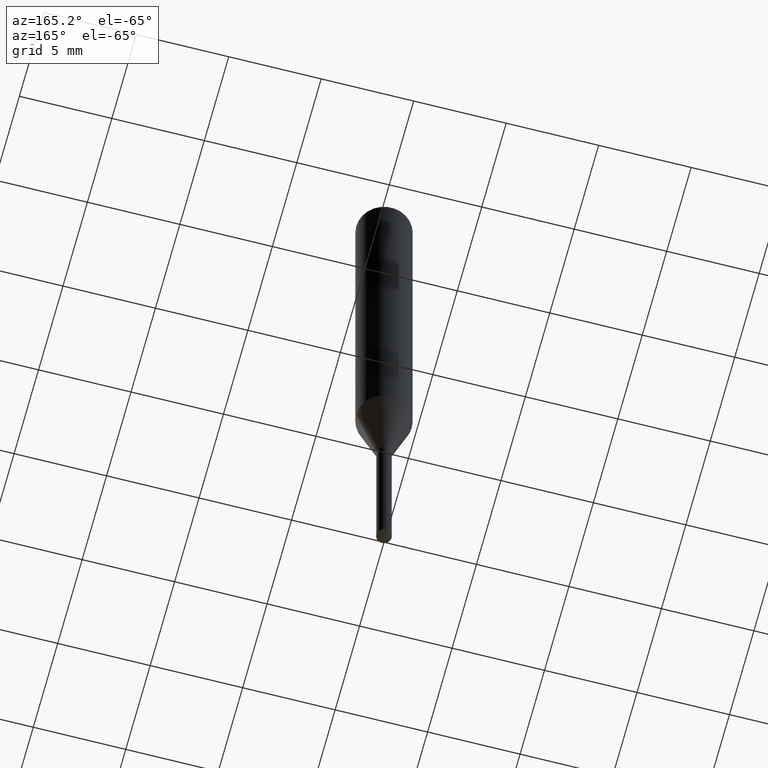
[diagram: clean part render]
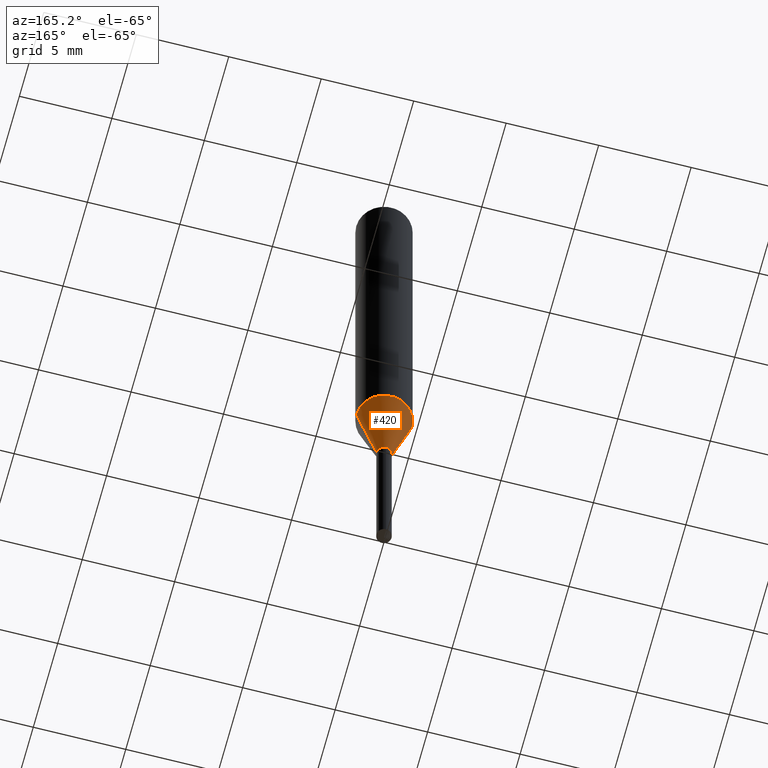
[diagram: same view with one face highlighted and labeled with its STEP entity id]
A machine part, auxiliary view. The second image highlights one B-rep face of the part: STEP entity #420.
In plain terms, the highlighted conical surface has half-angle 15 deg.
Its self-contained STEP definition (entity closure, byte-faithful):
#10 = CARTESIAN_POINT ( 'NONE',  ( -0.01615000000000000116, -3.697421247990632246E-15, -1.089699999999999891 ) ) ;
#16 = LINE ( 'NONE', #90, #66 ) ;
#51 = AXIS2_PLACEMENT_3D ( 'NONE', #489, #270, #423 ) ;
#66 = VECTOR ( 'NONE', #128, 39.37007874015747433 ) ;
#74 = ORIENTED_EDGE ( 'NONE', *, *, #240, .F. ) ;
#83 = DIRECTION ( 'NONE',  ( 1.000000000000000000, -6.982962677686274599E-15, 0.000000000000000000 ) ) ;
#90 = CARTESIAN_POINT ( 'NONE',  ( -0.01615000000000000116, -3.689914563112119387E-15, -1.089699999999999891 ) ) ;
#115 = VERTEX_POINT ( 'NONE', #453 ) ;
#121 = ORIENTED_EDGE ( 'NONE', *, *, #333, .F. ) ;
#128 = DIRECTION ( 'NONE',  ( -0.2588190451025213501, 5.211531920934551042E-15, 0.9659258262890682012 ) ) ;
#147 = CARTESIAN_POINT ( 'NONE',  ( 0.01615000000000000116, -3.917442062182008625E-15, -1.089699999999999891 ) ) ;
#159 = VERTEX_POINT ( 'NONE', #10 ) ;
#161 = EDGE_CURVE ( 'NONE', #244, #159, #174, .T. ) ;
#165 = ORIENTED_EDGE ( 'NONE', *, *, #408, .T. ) ;
#174 = CIRCLE ( 'NONE', #404, 0.01615000000000000116 ) ;
#196 = CARTESIAN_POINT ( 'NONE',  ( 2.664827358099943030E-29, -3.804667214937374761E-15, -1.089699999999999891 ) ) ;
#206 = DIRECTION ( 'NONE',  ( 0.2588190451025213501, 1.565188264969621968E-15, 0.9659258262890682012 ) ) ;
#240 = EDGE_CURVE ( 'NONE', #285, #115, #484, .T. ) ;
#244 = VERTEX_POINT ( 'NONE', #147 ) ;
#264 = ORIENTED_EDGE ( 'NONE', *, *, #161, .T. ) ;
#270 = DIRECTION ( 'NONE',  ( -2.445468806185136597E-29, 3.491481338843145583E-15, 1.000000000000000000 ) ) ;
#274 = VECTOR ( 'NONE', #206, 39.37007874015747433 ) ;
#277 = CARTESIAN_POINT ( 'NONE',  ( 2.664827358099943030E-29, -3.804667214937374761E-15, -1.089699999999999891 ) ) ;
#281 = LINE ( 'NONE', #323, #274 ) ;
#285 = VERTEX_POINT ( 'NONE', #410 ) ;
#286 = DIRECTION ( 'NONE',  ( -2.445468806185136597E-29, 3.491481338843145583E-15, 1.000000000000000000 ) ) ;
#323 = CARTESIAN_POINT ( 'NONE',  ( 0.01615000000000000116, -3.917442062182008625E-15, -1.089699999999999891 ) ) ;
#333 = EDGE_CURVE ( 'NONE', #244, #285, #281, .T. ) ;
#383 = CONICAL_SURFACE ( 'NONE', #390, 0.01615000000000000116, 0.2617993877991500740 ) ;
#390 = AXIS2_PLACEMENT_3D ( 'NONE', #196, #286, #441 ) ;
#404 = AXIS2_PLACEMENT_3D ( 'NONE', #277, #425, #83 ) ;
#408 = EDGE_CURVE ( 'NONE', #159, #115, #16, .T. ) ;
#410 = CARTESIAN_POINT ( 'NONE',  ( 0.05905000000000010935, -3.658007612369401404E-15, -0.9295950203552949542 ) ) ;
#420 = ADVANCED_FACE ( 'NONE', ( #465 ), #383, .T. ) ;
#423 = DIRECTION ( 'NONE',  ( 1.000000000000000000, -6.982962677686267499E-15, 0.000000000000000000 ) ) ;
#425 = DIRECTION ( 'NONE',  ( -2.445468806185136597E-29, 3.491481338843145583E-15, 1.000000000000000000 ) ) ;
#429 = EDGE_LOOP ( 'NONE', ( #264, #165, #74, #121 ) ) ;
#441 = DIRECTION ( 'NONE',  ( 1.000000000000000000, -6.982962677686274599E-15, 0.000000000000000000 ) ) ;
#453 = CARTESIAN_POINT ( 'NONE',  ( -0.05905000000000010935, -2.826088180785686597E-15, -0.9295950203552949542 ) ) ;
#465 = FACE_OUTER_BOUND ( 'NONE', #429, .T. ) ;
#484 = CIRCLE ( 'NONE', #51, 0.05905000000000010935 ) ;
#489 = CARTESIAN_POINT ( 'NONE',  ( 2.273295624663911029E-29, -3.245663666252026879E-15, -0.9295950203552949542 ) ) ;